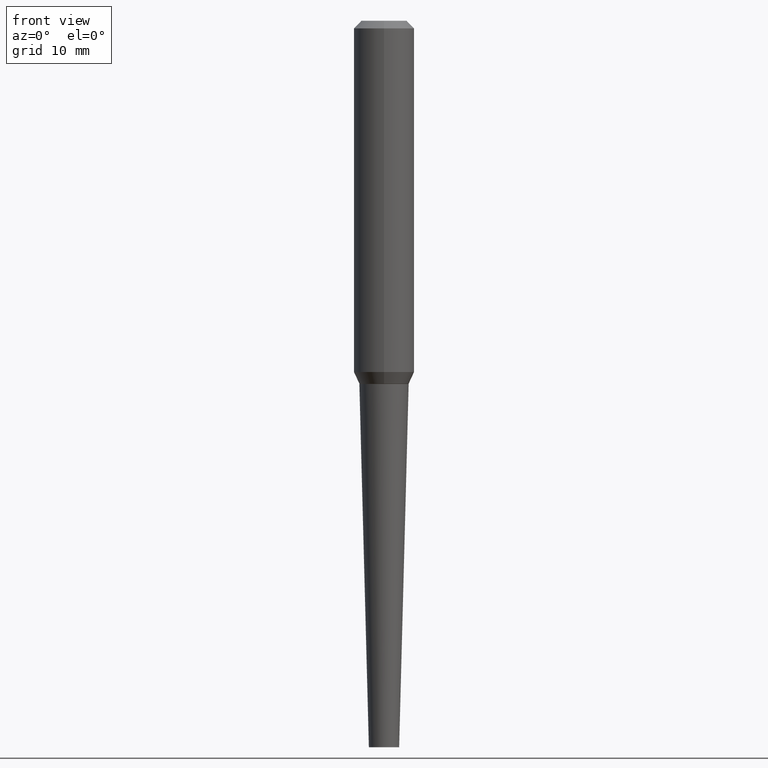
[diagram: clean part render]
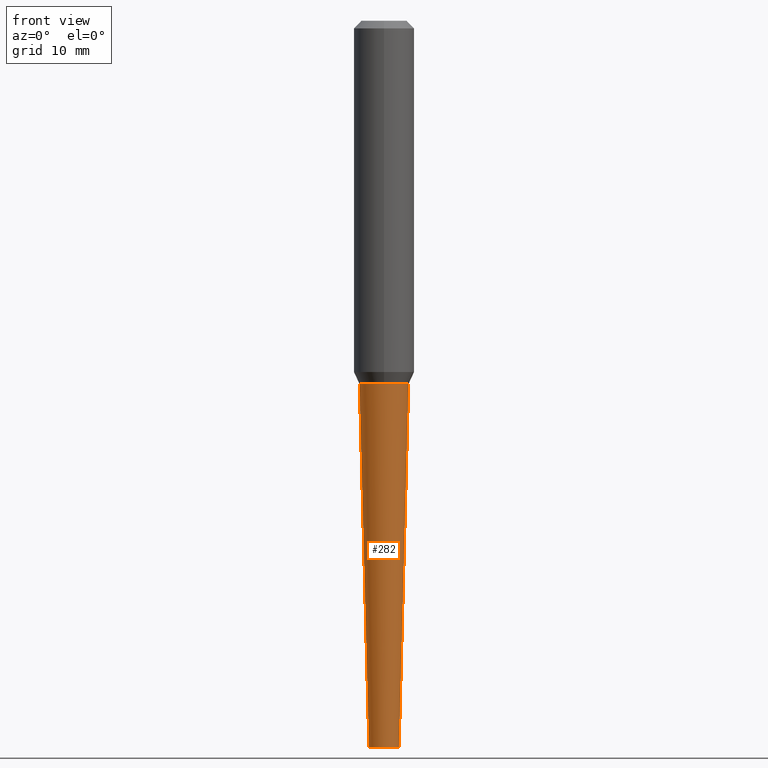
[diagram: same view with one face highlighted and labeled with its STEP entity id]
A machine part, front view. The second image highlights one B-rep face of the part: STEP entity #282.
In plain terms, the highlighted conical surface has half-angle 1.5 deg.
Its self-contained STEP definition (entity closure, byte-faithful):
#1 = AXIS2_PLACEMENT_3D ( 'NONE', #379, #30, #123 ) ;
#20 = EDGE_LOOP ( 'NONE', ( #64, #23, #305, #182 ) ) ;
#23 = ORIENTED_EDGE ( 'NONE', *, *, #327, .T. ) ;
#29 = CARTESIAN_POINT ( 'NONE',  ( 3.668203209277704895E-29, -5.237222008264718177E-15, -1.500000000000000222 ) ) ;
#30 = DIRECTION ( 'NONE',  ( -2.445468806185136597E-29, 3.491481338843145583E-15, 1.000000000000000000 ) ) ;
#42 = LINE ( 'NONE', #239, #68 ) ;
#48 = AXIS2_PLACEMENT_3D ( 'NONE', #315, #50, #343 ) ;
#50 = DIRECTION ( 'NONE',  ( -2.445468806185136597E-29, 3.491481338843145583E-15, 1.000000000000000000 ) ) ;
#55 = VERTEX_POINT ( 'NONE', #212 ) ;
#64 = ORIENTED_EDGE ( 'NONE', *, *, #262, .F. ) ;
#68 = VECTOR ( 'NONE', #372, 39.37007874015748143 ) ;
#102 = CARTESIAN_POINT ( 'NONE',  ( -0.1017788823537697646, -4.514039553162188741E-15, -1.500000000000000222 ) ) ;
#123 = DIRECTION ( 'NONE',  ( 1.000000000000000000, -6.982962677686276177E-15, 0.000000000000000000 ) ) ;
#154 = EDGE_CURVE ( 'NONE', #55, #268, #42, .T. ) ;
#163 = CARTESIAN_POINT ( 'NONE',  ( -0.06249999999999988204, -7.272197179920781633E-15, -3.000000000000000444 ) ) ;
#176 = CARTESIAN_POINT ( 'NONE',  ( -0.06249999999999988204, -1.003035480667937531E-14, -3.000000000000000444 ) ) ;
#179 = VERTEX_POINT ( 'NONE', #163 ) ;
#181 = DIRECTION ( 'NONE',  ( -2.445468806185136597E-29, 3.491481338843145583E-15, 1.000000000000000000 ) ) ;
#182 = ORIENTED_EDGE ( 'NONE', *, *, #361, .F. ) ;
#195 = VECTOR ( 'NONE', #296, 39.37007874015748143 ) ;
#212 = CARTESIAN_POINT ( 'NONE',  ( 0.06249999999999988204, -1.091087918388482802E-14, -3.000000000000000444 ) ) ;
#230 = CIRCLE ( 'NONE', #48, 0.06249999999999988204 ) ;
#239 = CARTESIAN_POINT ( 'NONE',  ( 0.06249999999999988204, -1.091087918388482802E-14, -3.000000000000000444 ) ) ;
#259 = CIRCLE ( 'NONE', #393, 0.1017788823537697646 ) ;
#262 = EDGE_CURVE ( 'NONE', #179, #277, #272, .T. ) ;
#268 = VERTEX_POINT ( 'NONE', #328 ) ;
#272 = LINE ( 'NONE', #176, #195 ) ;
#277 = VERTEX_POINT ( 'NONE', #102 ) ;
#282 = ADVANCED_FACE ( 'NONE', ( #348 ), #302, .T. ) ;
#296 = DIRECTION ( 'NONE',  ( -0.02617694830786614774, 3.676283300035236100E-15, 0.9996573249755573709 ) ) ;
#302 = CONICAL_SURFACE ( 'NONE', #1, 0.06249999999999988204, 0.02617993877990793666 ) ;
#305 = ORIENTED_EDGE ( 'NONE', *, *, #154, .T. ) ;
#309 = DIRECTION ( 'NONE',  ( 1.000000000000000000, -6.982962677686263555E-15, 0.000000000000000000 ) ) ;
#315 = CARTESIAN_POINT ( 'NONE',  ( 7.336406418555409790E-29, -1.047444401652943635E-14, -3.000000000000000444 ) ) ;
#327 = EDGE_CURVE ( 'NONE', #179, #55, #230, .T. ) ;
#328 = CARTESIAN_POINT ( 'NONE',  ( 0.1017788823537697646, -5.947940145117713967E-15, -1.500000000000000222 ) ) ;
#343 = DIRECTION ( 'NONE',  ( 1.000000000000000000, -6.982962677686276177E-15, 0.000000000000000000 ) ) ;
#348 = FACE_OUTER_BOUND ( 'NONE', #20, .T. ) ;
#361 = EDGE_CURVE ( 'NONE', #277, #268, #259, .T. ) ;
#372 = DIRECTION ( 'NONE',  ( 0.02617694830786614774, 3.307492242340464735E-15, 0.9996573249755573709 ) ) ;
#379 = CARTESIAN_POINT ( 'NONE',  ( 7.336406418555409790E-29, -1.047444401652943635E-14, -3.000000000000000444 ) ) ;
#393 = AXIS2_PLACEMENT_3D ( 'NONE', #29, #181, #309 ) ;